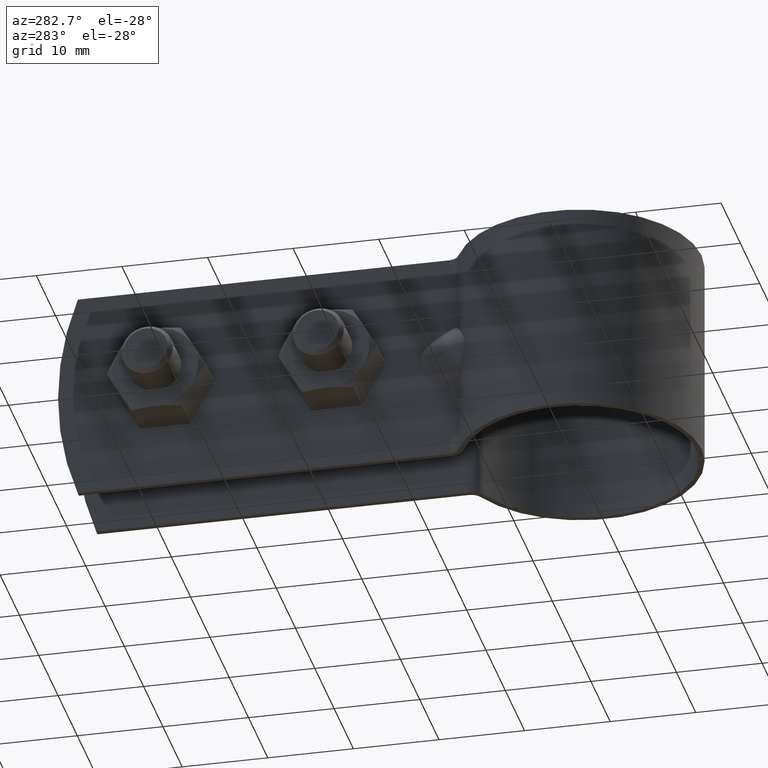
[diagram: clean part render]
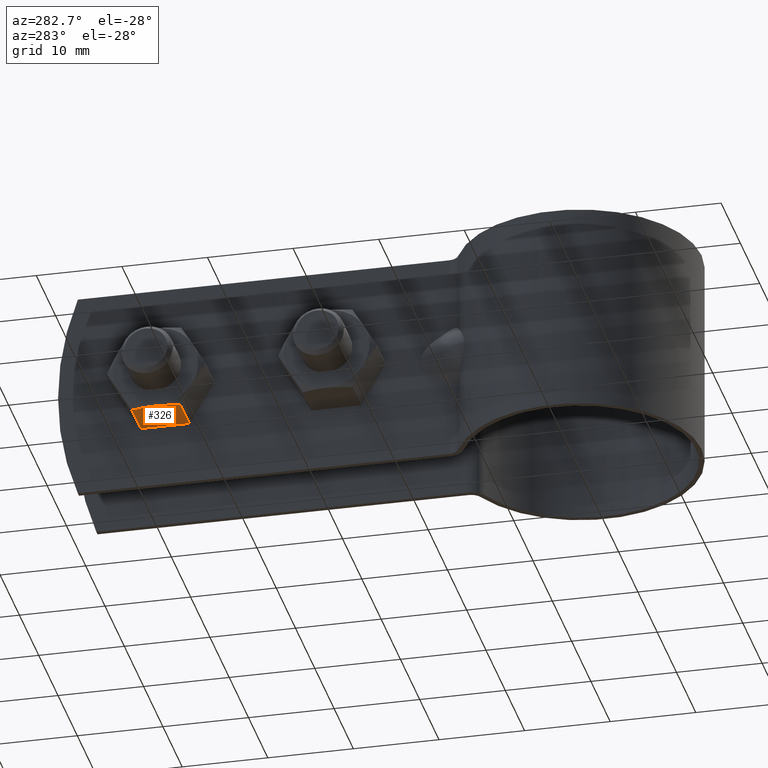
[diagram: same view with one face highlighted and labeled with its STEP entity id]
A machine part, auxiliary view. The second image highlights one B-rep face of the part: STEP entity #326.
In plain terms, the highlighted planar face has unit normal (0, 0, 1).
Its self-contained STEP definition (entity closure, byte-faithful):
#326 = ADVANCED_FACE( '', ( #505 ), #506, .F. );
#505 = FACE_OUTER_BOUND( '', #737, .T. );
#506 = PLANE( '', #738 );
#737 = EDGE_LOOP( '', ( #1309, #1310, #1311, #1312, #1313 ) );
#738 = AXIS2_PLACEMENT_3D( '', #1314, #1315, #1316 );
#1309 = ORIENTED_EDGE( '', *, *, #1773, .F. );
#1310 = ORIENTED_EDGE( '', *, *, #1774, .F. );
#1311 = ORIENTED_EDGE( '', *, *, #1772, .F. );
#1312 = ORIENTED_EDGE( '', *, *, #1752, .F. );
#1313 = ORIENTED_EDGE( '', *, *, #1775, .F. );
#1314 = CARTESIAN_POINT( '', ( -5.10000000000002, 44.4471880336814, -5.00000000000000 ) );
#1315 = DIRECTION( '', ( 0.000000000000000, 0.000000000000000, 1.00000000000000 ) );
#1316 = DIRECTION( '', ( 1.00000000000000, 0.000000000000000, 0.000000000000000 ) );
#1752 = EDGE_CURVE( '', #2087, #2089, #2090, .T. );
#1772 = EDGE_CURVE( '', #2089, #2117, #2119, .F. );
#1773 = EDGE_CURVE( '', #2057, #2120, #2121, .F. );
#1774 = EDGE_CURVE( '', #2117, #2057, #2122, .F. );
#1775 = EDGE_CURVE( '', #2120, #2087, #2123, .T. );
#2057 = VERTEX_POINT( '', #2599 );
#2087 = VERTEX_POINT( '', #2644 );
#2089 = VERTEX_POINT( '', #2646 );
#2090 = LINE( '', #2647, #2648 );
#2117 = VERTEX_POINT( '', #2709 );
#2119 = LINE( '', #2711, #2712 );
#2120 = VERTEX_POINT( '', #2713 );
#2121 = B_SPLINE_CURVE_WITH_KNOTS( '', 3, ( #2714, #2715, #2716, #2717, #2718, #2719 ), .UNSPECIFIED., .F., .F., ( 4, 2, 4 ), ( 0.00519725619092114, 0.00663292719463914, 0.00806859819835714 ), .UNSPECIFIED. );
#2122 = B_SPLINE_CURVE_WITH_KNOTS( '', 3, ( #2720, #2721, #2722, #2723, #2724, #2725 ), .UNSPECIFIED., .F., .F., ( 4, 2, 4 ), ( 0.00806859819835714, 0.00950497228174471, 0.0109413463651323 ), .UNSPECIFIED. );
#2123 = LINE( '', #2726, #2727 );
#2599 = CARTESIAN_POINT( '', ( -10.1000000000000, 47.3339393796296, -5.00000000000000 ) );
#2644 = CARTESIAN_POINT( '', ( -5.10000000000002, 44.4944852067294, -5.00000000000000 ) );
#2646 = CARTESIAN_POINT( '', ( -5.10000000000002, 50.1733935525297, -5.00000000000000 ) );
#2647 = CARTESIAN_POINT( '', ( -5.10000000000002, 53.0839393796296, -5.00000000000000 ) );
#2648 = VECTOR( '', #3208, 1000.00000000000 );
#2709 = CARTESIAN_POINT( '', ( -9.66698729810780, 50.1733935525297, -5.00000000000000 ) );
#2711 = CARTESIAN_POINT( '', ( -5.10000000000002, 50.1733935525297, -5.00000000000000 ) );
#2712 = VECTOR( '', #3233, 1000.00000000000 );
#2713 = CARTESIAN_POINT( '', ( -9.66698729810780, 44.4944852067294, -5.00000000000000 ) );
#2714 = CARTESIAN_POINT( '', ( -9.66698729810781, 44.4944852067294, -5.00000000000000 ) );
#2715 = CARTESIAN_POINT( '', ( -9.79876289079438, 44.9566837649864, -5.00000000000000 ) );
#2716 = CARTESIAN_POINT( '', ( -9.90898038823823, 45.4298194141142, -5.00000000000000 ) );
#2717 = CARTESIAN_POINT( '', ( -10.0594851340825, 46.3777421907105, -5.00000000000000 ) );
#2718 = CARTESIAN_POINT( '', ( -10.1000000000000, 46.8543168417580, -5.00000000000000 ) );
#2719 = CARTESIAN_POINT( '', ( -10.1000000000000, 47.3339393796296, -5.00000000000000 ) );
#2720 = CARTESIAN_POINT( '', ( -10.1000000000000, 47.3339393796296, -5.00000000000000 ) );
#2721 = CARTESIAN_POINT( '', ( -10.1000000000000, 47.8137967992077, -5.00000000000000 ) );
#2722 = CARTESIAN_POINT( '', ( -10.0583898630217, 48.3001786176977, -5.00000000000000 ) );
#2723 = CARTESIAN_POINT( '', ( -9.90676947593068, 49.2487710432568, -5.00000000000000 ) );
#2724 = CARTESIAN_POINT( '', ( -9.79793774197780, 49.7140891766141, -5.00000000000000 ) );
#2725 = CARTESIAN_POINT( '', ( -9.66698729810781, 50.1733935525297, -5.00000000000000 ) );
#2726 = CARTESIAN_POINT( '', ( -5.10000000000002, 44.4944852067294, -5.00000000000000 ) );
#2727 = VECTOR( '', #3234, 1000.00000000000 );
#3208 = DIRECTION( '', ( 0.000000000000000, 1.00000000000000, 0.000000000000000 ) );
#3233 = DIRECTION( '', ( 1.00000000000000, 0.000000000000000, 0.000000000000000 ) );
#3234 = DIRECTION( '', ( 1.00000000000000, 0.000000000000000, 0.000000000000000 ) );